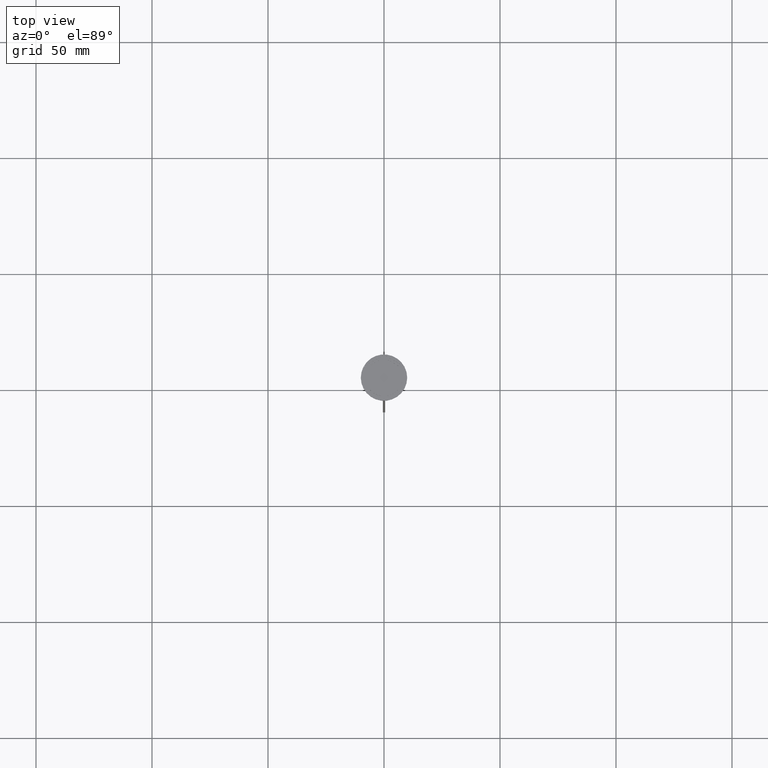
[diagram: clean part render]
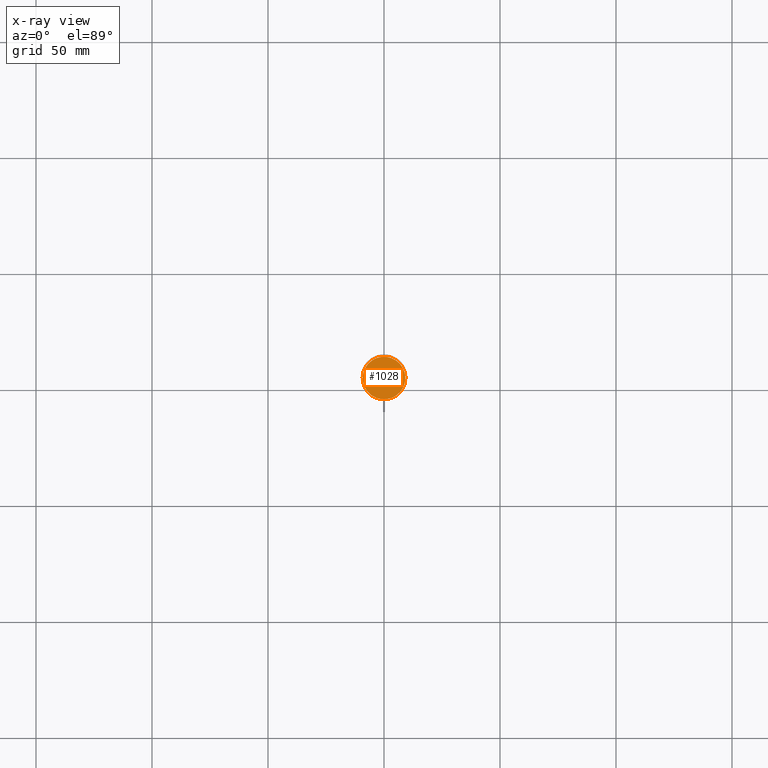
[diagram: x-ray — body ghosted, one internal face saturated and labeled with its STEP entity id]
A machine part, top view, then the same camera in x-ray: the body is ghosted and one INTERNAL B-rep face — a face not visible from any outside direction — is saturated and labeled: STEP entity #1028.
In plain terms, the highlighted planar face has unit normal (0, 0, -1).
Its self-contained STEP definition (entity closure, byte-faithful):
#3 = CARTESIAN_POINT ( 'NONE',  ( -9.200000000000001066, 0.000000000000000000, -12.00000000000000000 ) ) ;
#20 = ORIENTED_EDGE ( 'NONE', *, *, #938, .T. ) ;
#27 = EDGE_CURVE ( 'NONE', #2380, #848, #1952, .T. ) ;
#67 = ORIENTED_EDGE ( 'NONE', *, *, #27, .T. ) ;
#309 = AXIS2_PLACEMENT_3D ( 'NONE', #1355, #1337, #1308 ) ;
#530 = FACE_OUTER_BOUND ( 'NONE', #1200, .T. ) ;
#848 = VERTEX_POINT ( 'NONE', #2025 ) ;
#938 = EDGE_CURVE ( 'NONE', #848, #2380, #2051, .T. ) ;
#1028 = ADVANCED_FACE ( 'NONE', ( #530 ), #2208, .F. ) ;
#1200 = EDGE_LOOP ( 'NONE', ( #67, #20 ) ) ;
#1308 = DIRECTION ( 'NONE',  ( -1.000000000000000000, 0.000000000000000000, -0.000000000000000000 ) ) ;
#1337 = DIRECTION ( 'NONE',  ( 0.000000000000000000, 0.000000000000000000, -1.000000000000000000 ) ) ;
#1355 = CARTESIAN_POINT ( 'NONE',  ( 0.000000000000000000, 0.000000000000000000, -12.00000000000000000 ) ) ;
#1392 = CARTESIAN_POINT ( 'NONE',  ( 0.000000000000000000, 0.000000000000000000, -12.00000000000000000 ) ) ;
#1480 = DIRECTION ( 'NONE',  ( -0.000000000000000000, -0.000000000000000000, 1.000000000000000000 ) ) ;
#1601 = DIRECTION ( 'NONE',  ( -0.000000000000000000, -0.000000000000000000, 1.000000000000000000 ) ) ;
#1731 = DIRECTION ( 'NONE',  ( -1.000000000000000000, 0.000000000000000000, 0.000000000000000000 ) ) ;
#1783 = AXIS2_PLACEMENT_3D ( 'NONE', #1392, #1601, #2435 ) ;
#1920 = AXIS2_PLACEMENT_3D ( 'NONE', #2540, #1480, #1731 ) ;
#1952 = CIRCLE ( 'NONE', #1783, 9.200000000000001066 ) ;
#2025 = CARTESIAN_POINT ( 'NONE',  ( 9.200000000000001066, 1.145044757202775450E-15, -12.00000000000000000 ) ) ;
#2051 = CIRCLE ( 'NONE', #1920, 9.200000000000001066 ) ;
#2208 = PLANE ( 'NONE',  #309 ) ;
#2380 = VERTEX_POINT ( 'NONE', #3 ) ;
#2435 = DIRECTION ( 'NONE',  ( -1.000000000000000000, 0.000000000000000000, 0.000000000000000000 ) ) ;
#2540 = CARTESIAN_POINT ( 'NONE',  ( 0.000000000000000000, 0.000000000000000000, -12.00000000000000000 ) ) ;